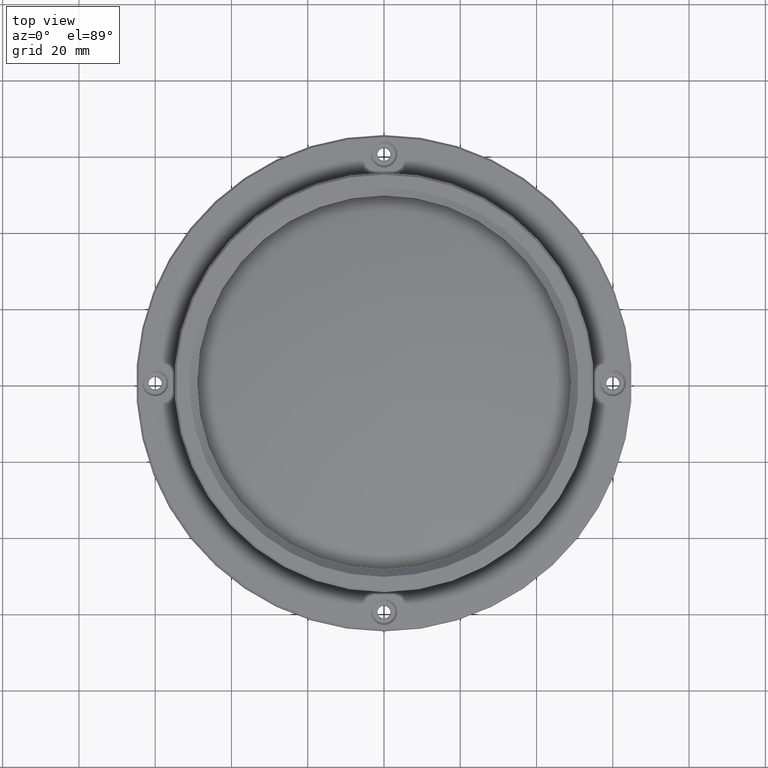
[diagram: clean part render]
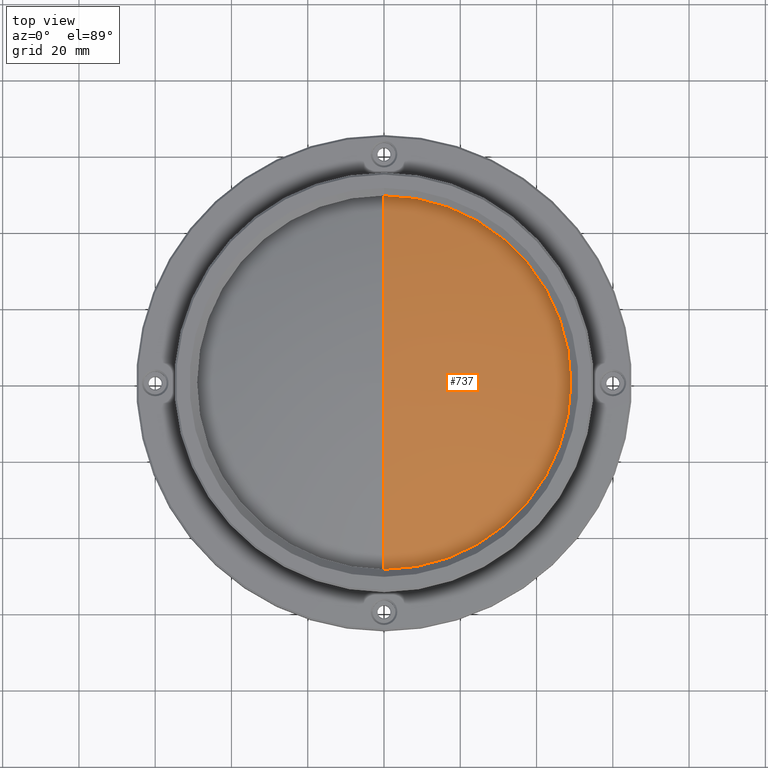
[diagram: same view with one face highlighted and labeled with its STEP entity id]
A machine part, top view. The second image highlights one B-rep face of the part: STEP entity #737.
In plain terms, the highlighted spherical surface has radius 174.696 mm.
Its self-contained STEP definition (entity closure, byte-faithful):
#34 = CIRCLE ( 'NONE', #1392, 174.6962735214999327 ) ;
#270 = DIRECTION ( 'NONE',  ( 0.000000000000000000, -1.000000000000000000, 0.000000000000000000 ) ) ;
#404 = EDGE_CURVE ( 'NONE', #630, #1550, #34, .T. ) ;
#532 = DIRECTION ( 'NONE',  ( 0.000000000000000000, -0.2804868072584971173, 0.9598578806020894305 ) ) ;
#617 = CARTESIAN_POINT ( 'NONE',  ( -1.200153863163999924E-14, -49.00000000000000000, 68.48732132992999766 ) ) ;
#630 = VERTEX_POINT ( 'NONE', #617 ) ;
#679 = CIRCLE ( 'NONE', #1981, 49.00000000000000000 ) ;
#737 = ADVANCED_FACE ( 'NONE', ( #816 ), #2043, .T. ) ;
#816 = FACE_OUTER_BOUND ( 'NONE', #1432, .T. ) ;
#1177 = CARTESIAN_POINT ( 'NONE',  ( 0.000000000000000000, 49.00000000000000000, 68.48732132992999766 ) ) ;
#1219 = DIRECTION ( 'NONE',  ( -1.000000000000000000, 0.000000000000000000, 0.000000000000000000 ) ) ;
#1347 = ORIENTED_EDGE ( 'NONE', *, *, #404, .F. ) ;
#1350 = DIRECTION ( 'NONE',  ( 0.000000000000000000, 0.000000000000000000, -1.000000000000000000 ) ) ;
#1354 = DIRECTION ( 'NONE',  ( 0.000000000000000000, 0.000000000000000000, 1.000000000000000000 ) ) ;
#1392 = AXIS2_PLACEMENT_3D ( 'NONE', #2282, #1219, #532 ) ;
#1432 = EDGE_LOOP ( 'NONE', ( #1347, #2098 ) ) ;
#1485 = EDGE_CURVE ( 'NONE', #1550, #630, #679, .T. ) ;
#1550 = VERTEX_POINT ( 'NONE', #1177 ) ;
#1981 = AXIS2_PLACEMENT_3D ( 'NONE', #2241, #1350, #2068 ) ;
#1986 = AXIS2_PLACEMENT_3D ( 'NONE', #2054, #1354, #270 ) ;
#2043 = SPHERICAL_SURFACE ( 'NONE', #1986, 174.6962735214999896 ) ;
#2054 = CARTESIAN_POINT ( 'NONE',  ( 0.000000000000000000, 0.000000000000000000, -99.19627352151999844 ) ) ;
#2068 = DIRECTION ( 'NONE',  ( 0.000000000000000000, 1.000000000000000000, 0.000000000000000000 ) ) ;
#2098 = ORIENTED_EDGE ( 'NONE', *, *, #1485, .F. ) ;
#2241 = CARTESIAN_POINT ( 'NONE',  ( 0.000000000000000000, 0.000000000000000000, 68.48732132992999766 ) ) ;
#2282 = CARTESIAN_POINT ( 'NONE',  ( 0.000000000000000000, 0.000000000000000000, -99.19627352151999844 ) ) ;